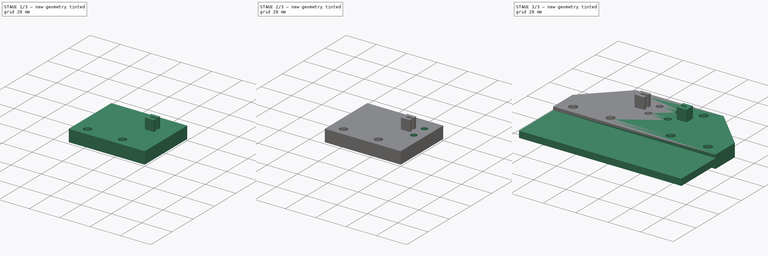
[diagram: build sequence overview — one tinted view per stage of 3, left to right]
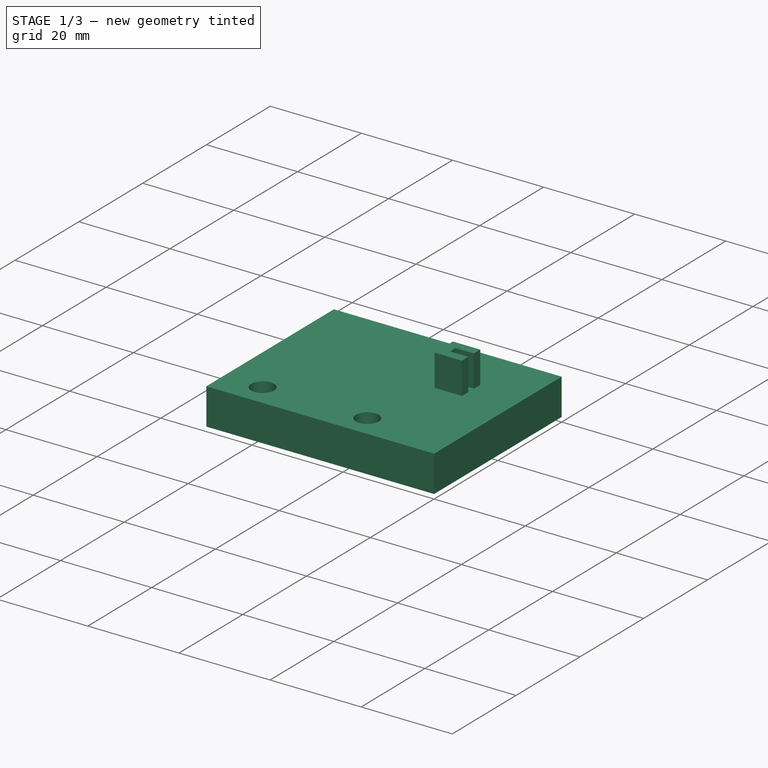
[diagram: stage 1 of 3 — iso view after this stage's code; geometry added in this stage tinted green]
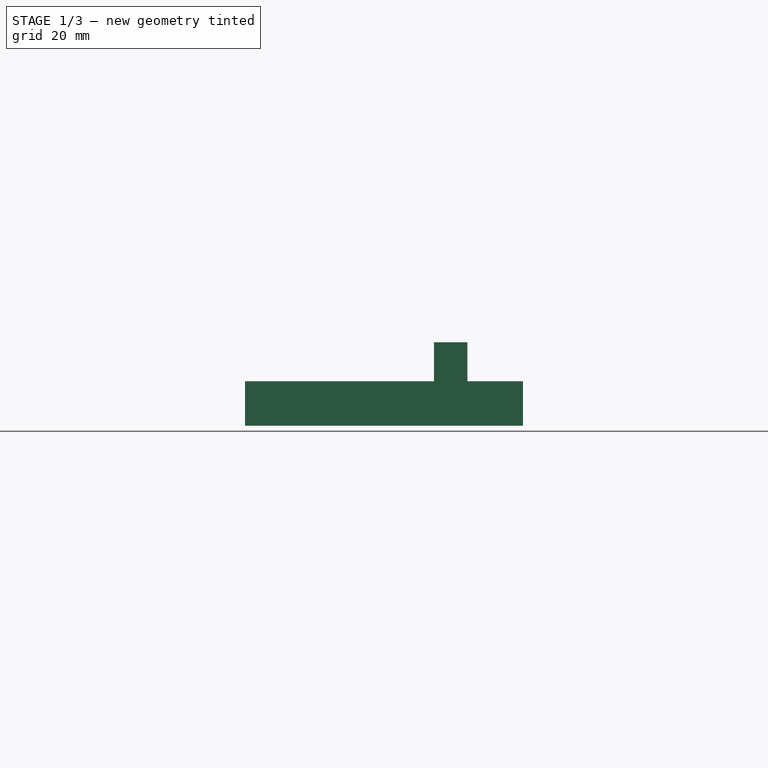
[diagram: stage 1 of 3 — front view after this stage's code; geometry added in this stage tinted green]
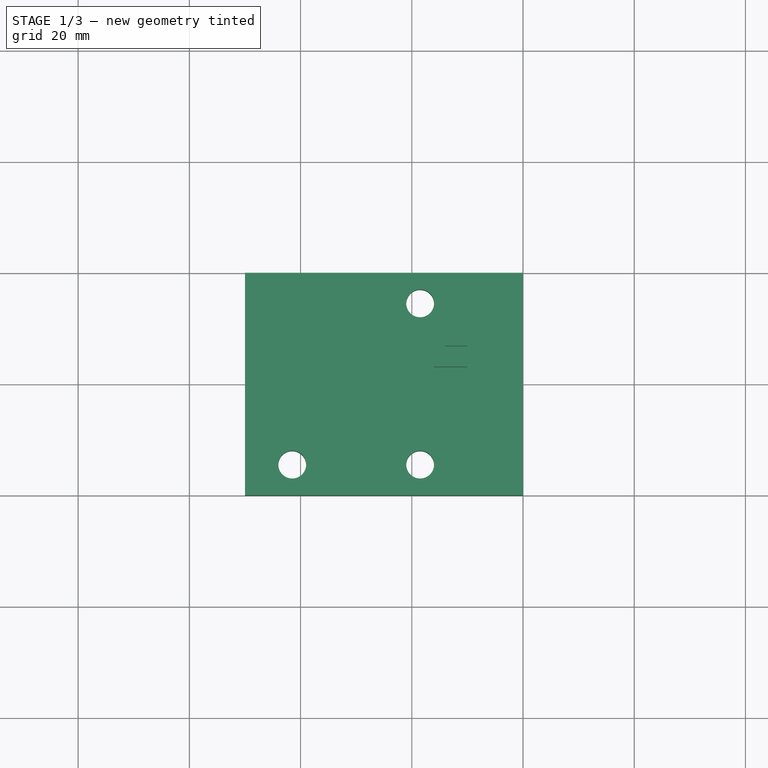
[diagram: stage 1 of 3 — top view after this stage's code; geometry added in this stage tinted green]
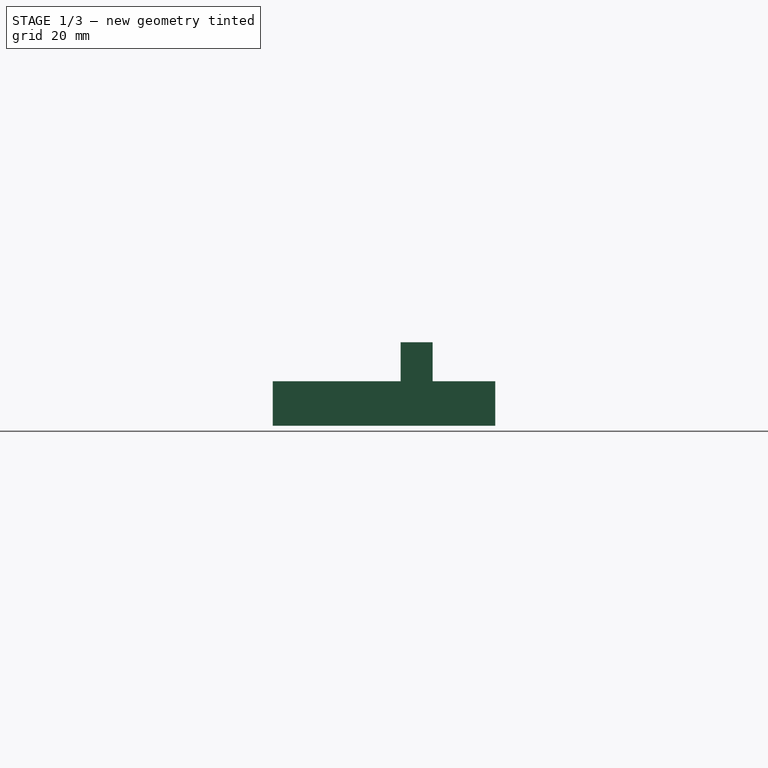
[diagram: stage 1 of 3 — right view after this stage's code; geometry added in this stage tinted green]
FCSTD DOCUMENT  (FreeCAD 1.0R39109 (Git))
Label: front_plate
License: All rights reserved
LicenseURL: https://en.wikipedia.org/wiki/All_rights_reserved
objects: Sketcher::SketchObject×5, PartDesign::Pad×3, PartDesign::Pocket×2, PartDesign::Mirrored×2, PartDesign::Chamfer×1, PartDesign::Body×1
note: 33 computed .brp shape members not serialized (recipe doc carries the construction recipe); baked Part::Feature solids carry a one-line shape summary decoded from their .brp

FEATURE [Sketcher::SketchObject] Sketch
  ArcFitTolerance = 1e-06
  AttachmentSupport = -> [XY_Plane]
  FullyConstrained = true
  MakeInternals = false
  MapMode = 5
  sketch-geometry (5):
    g0: LineSegment StartX=-50 StartY=-20 StartZ=0 EndX=0 EndY=-20 EndZ=0
    g1: LineSegment StartX=0 StartY=20 StartZ=0 EndX=-50 EndY=20 EndZ=0
    g2: LineSegment StartX=-50 StartY=20 StartZ=0 EndX=-50 EndY=-20 EndZ=0
    g3: GeomPoint [constr] X=0 Y=0 Z=0
    g4: LineSegment StartX=0 StartY=20 StartZ=0 EndX=0 EndY=-20 EndZ=0
  constraints (12):
    c: Coincident(g1,g2)
    c: Coincident(g2,g0)
    c: Horizontal(g0)
    c: Horizontal(g1)
    c: Vertical(g2)
    c: Distance(g0,g1) = 40
    c: Coincident(g3,g-1)
    c: Coincident(g4,g1)
    c: Coincident(g4,g0)
    c: DistanceX(g0,g0) = 50
    c: PointOnObject(g1,g-2)
    c: Symmetric(g1,g0,g-1)
FEATURE [PartDesign::Pad] Pad
  Direction = (0,0,1)
  Length = 8
  Length2 = 10
  Profile = -> Sketch
  ReferenceAxis = -> Sketch [N_Axis]
  Refine = true
  Suppressed = false
  Type = 0
FEATURE [Sketcher::SketchObject] Sketch001
  ArcFitTolerance = 1e-06
  AttachmentSupport = -> [Pad]
  FullyConstrained = true
  MakeInternals = false
  MapMode = 5
  Placement = pos=(0,0,8) rot=(0,0,1;0rad)
  sketch-geometry (8):
    g0: LineSegment [constr] StartX=-41.5 StartY=-14.5 StartZ=0 EndX=-18.5 EndY=-14.5 EndZ=0
    g1: LineSegment [constr] StartX=-18.5 StartY=-14.5 StartZ=0 EndX=-18.5 EndY=14.5 EndZ=0
    g2: LineSegment [constr] StartX=-18.5 StartY=14.5 StartZ=0 EndX=-41.5 EndY=14.5 EndZ=0
    g3: LineSegment [constr] StartX=-41.5 StartY=14.5 StartZ=0 EndX=-41.5 EndY=-14.5 EndZ=0
    g4: GeomPoint [constr] X=-30 Y=0 Z=0
    g5: Circle CenterX=-18.5 CenterY=14.5 CenterZ=0 NormalX=0 NormalY=0 NormalZ=1 AngleXU=0 Radius=2.5
    g6: Circle CenterX=-41.5 CenterY=-14.5 CenterZ=0 NormalX=0 NormalY=0 NormalZ=1 AngleXU=0 Radius=2.5
    g7: Circle CenterX=-18.5 CenterY=-14.5 CenterZ=0 NormalX=0 NormalY=0 NormalZ=1 AngleXU=0 Radius=2.5
  constraints (19):
    c: Coincident(g0,g1)
    c: Coincident(g1,g2)
    c: Coincident(g2,g3)
    c: Coincident(g3,g0)
    c: Horizontal(g0)
    c: Horizontal(g2)
    c: Vertical(g1)
    c: Vertical(g3)
    c: Symmetric(g2,g0,g4)
    c: Distance(g1,g3) = 23
    c: Distance(g0,g2) = 29
    c: PointOnObject(g4,g-1)
    c: DistanceX(g4,g-1) = 30
    c: Diameter(g5) = 5
    c: Coincident(g5,g1)
    c: Diameter(g6) = 5
    c: Coincident(g6,g0)
    c: Diameter(g7) = 5
    c: Coincident(g7,g0)
FEATURE [PartDesign::Pocket] Pocket
  BaseFeature = -> Pad
  Direction = (0,0,-1)
  Length = 5
  Length2 = 5
  Profile = -> Sketch001
  ReferenceAxis = -> Sketch001 [N_Axis]
  Refine = true
  Suppressed = false
  Type = 1
FEATURE [Sketcher::SketchObject] Sketch002
  ArcFitTolerance = 1e-06
  AttachmentSupport = -> [Pocket]
  FullyConstrained = true
  MakeInternals = false
  MapMode = 5
  Placement = pos=(0,0,8) rot=(0,0,1;0rad)
  sketch-geometry (8):
    g0: LineSegment StartX=-14 StartY=6.75 StartZ=0 EndX=-14 EndY=5 EndZ=0
    g1: LineSegment StartX=-14 StartY=6.75 StartZ=0 EndX=-10 EndY=6.75 EndZ=0
    g2: LineSegment StartX=-14 StartY=5 StartZ=0 EndX=-10 EndY=5 EndZ=0
    g3: LineSegment StartX=-10 StartY=6.75 StartZ=0 EndX=-10 EndY=8.75 EndZ=0
    g4: LineSegment StartX=-10 StartY=8.75 StartZ=0 EndX=-16 EndY=8.75 EndZ=0
    g5: LineSegment StartX=-16 StartY=8.75 StartZ=0 EndX=-16 EndY=3 EndZ=0
    g6: LineSegment StartX=-16 StartY=3 StartZ=0 EndX=-10 EndY=3 EndZ=0
    g7: LineSegment StartX=-10 StartY=3 StartZ=0 EndX=-10 EndY=5 EndZ=0
  constraints (24):
    c: Distance(g-1,g0) = 14
    c: DistanceY(g0,g0) = 1.75
    c: Distance(g1) = 4
    c: Coincident(g1,g0)
    c: Horizontal(g1)
    c: Distance(g2) = 4
    c: Coincident(g2,g0)
    c: Horizontal(g2)
    c: Distance(g3) = 2
    c: Coincident(g3,g1)
    c: Vertical(g3)
    c: Coincident(g4,g3)
    c: Horizontal(g4)
    c: Coincident(g5,g4)
    c: Vertical(g5)
    c: Coincident(g6,g5)
    c: Horizontal(g6)
    c: Coincident(g7,g6)
    c: Coincident(g7,g2)
    c: Vertical(g7)
    c: DistanceY(g7,g7) = 2
    c: Distance(g0,g5) = 2
    c: Vertical(g2,g1)
    c: Distance(g6,g-1) = 3
FEATURE [PartDesign::Pad] Pad001
  BaseFeature = -> Pocket
  Direction = (0,0,1)
  Length = 7
  Length2 = 10
  Profile = -> Sketch002
  ReferenceAxis = -> Sketch002 [N_Axis]
  Refine = true
  Suppressed = false
  Type = 0
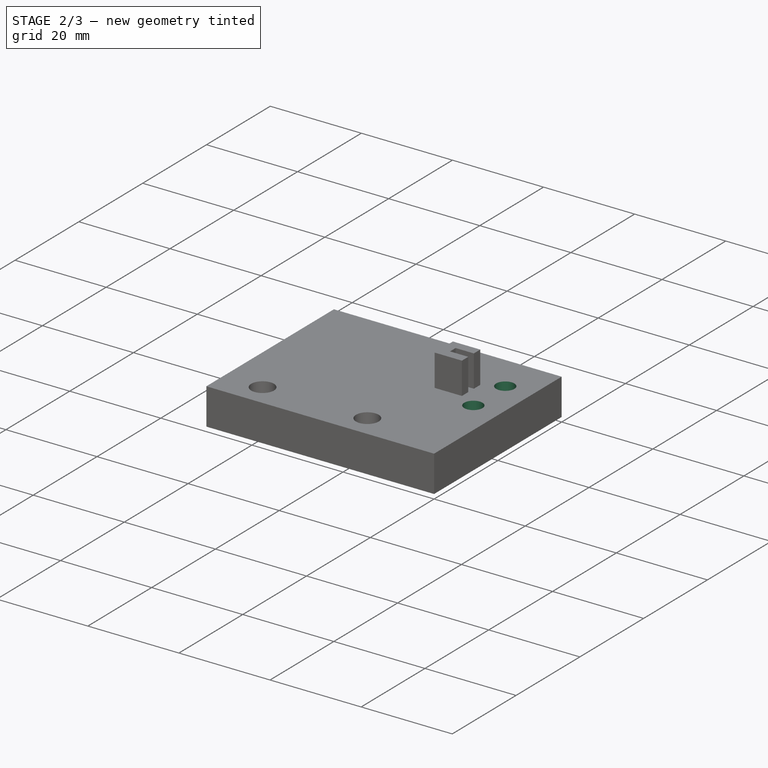
[diagram: stage 2 of 3 — iso view after this stage's code; geometry added in this stage tinted green]
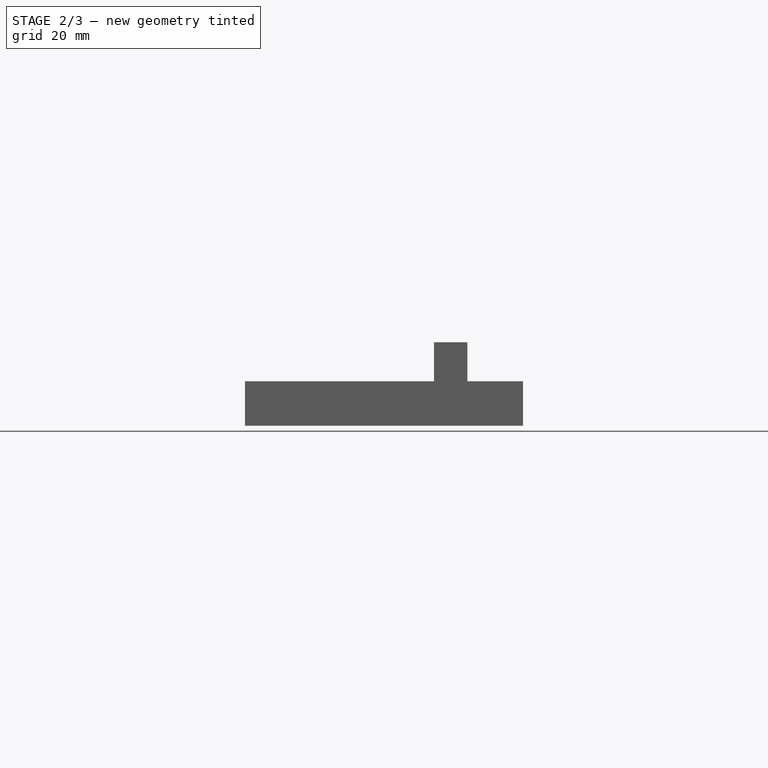
[diagram: stage 2 of 3 — front view after this stage's code; geometry added in this stage tinted green]
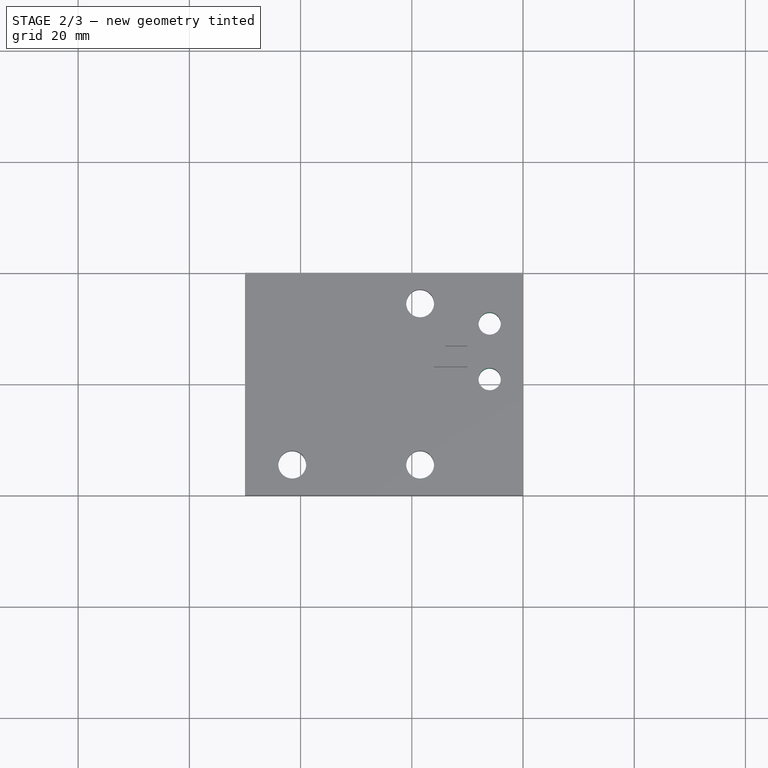
[diagram: stage 2 of 3 — top view after this stage's code; geometry added in this stage tinted green]
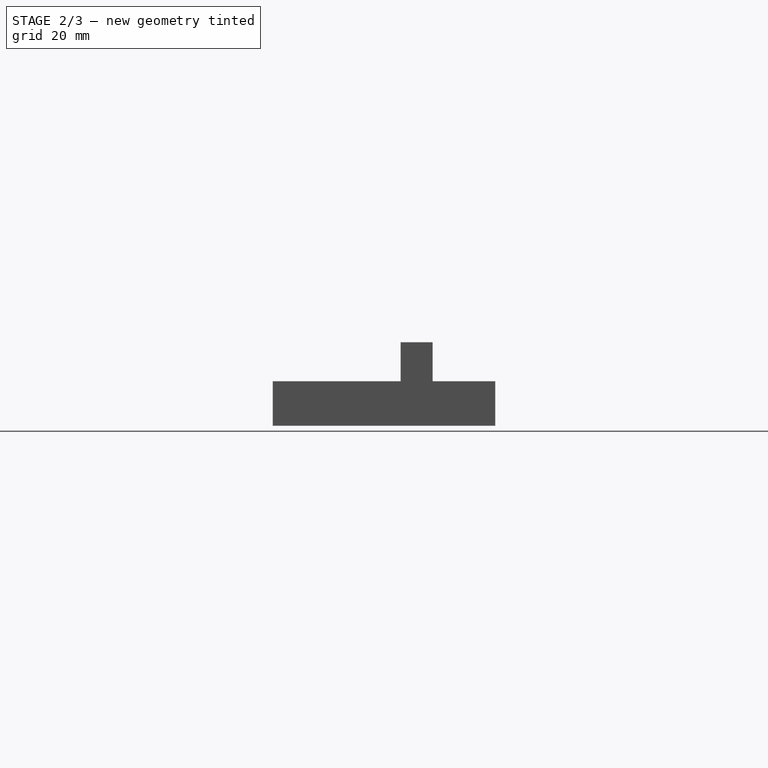
[diagram: stage 2 of 3 — right view after this stage's code; geometry added in this stage tinted green]
FEATURE [Sketcher::SketchObject] Sketch003
  ArcFitTolerance = 1e-06
  AttachmentSupport = -> [Pad001]
  ExternalGeometry = -> [Pad001]
  FullyConstrained = false
  MakeInternals = false
  MapMode = 5
  Placement = pos=(0,0,8) rot=(0,0,1;0rad)
  sketch-geometry (3):
    g0: Circle CenterX=-6 CenterY=0.875 CenterZ=0 NormalX=0 NormalY=0 NormalZ=1 AngleXU=0 Radius=2
    g1: Circle CenterX=-6 CenterY=10.875 CenterZ=0 NormalX=0 NormalY=0 NormalZ=1 AngleXU=0 Radius=2
    g2: LineSegment [constr] StartX=-14 StartY=5.875 StartZ=0 EndX=-4.87098 EndY=5.875 EndZ=0
  constraints (7):
    c: Diameter(g0) = 4
    c: Diameter(g1) = 4
    c: Vertical(g1,g0)
    c: DistanceY(g0,g1) = 10
    c: Symmetric(g-3,g-3,g2)
    c: Symmetric(g1,g0,g2)
    c: DistanceX(g2,g0) = 8
FEATURE [PartDesign::Pocket] Pocket001
  BaseFeature = -> Pad001
  Direction = (0,0,-1)
  Length = 5
  Length2 = 5
  Profile = -> Sketch003
  ReferenceAxis = -> Sketch003 [N_Axis]
  Refine = true
  Suppressed = false
  Type = 1
FEATURE [PartDesign::Mirrored] Mirrored
  BaseFeature = -> Pocket001
  MirrorPlane = -> XY_Plane
  Originals = -> [Pocket001,Pad001]
  Refine = true
  Suppressed = false
  TransformMode = 0
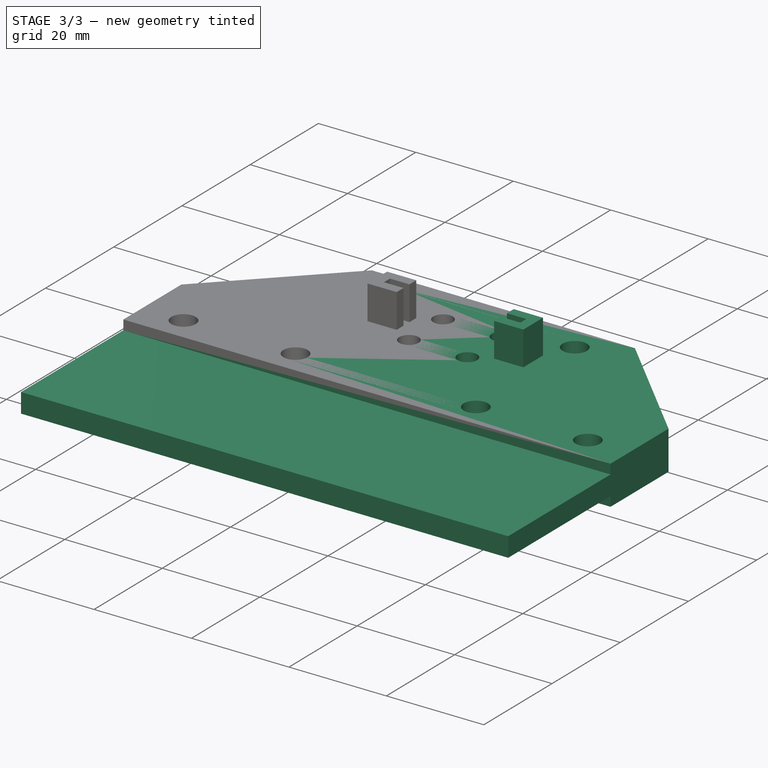
[diagram: stage 3 of 3 — iso view after this stage's code; geometry added in this stage tinted green]
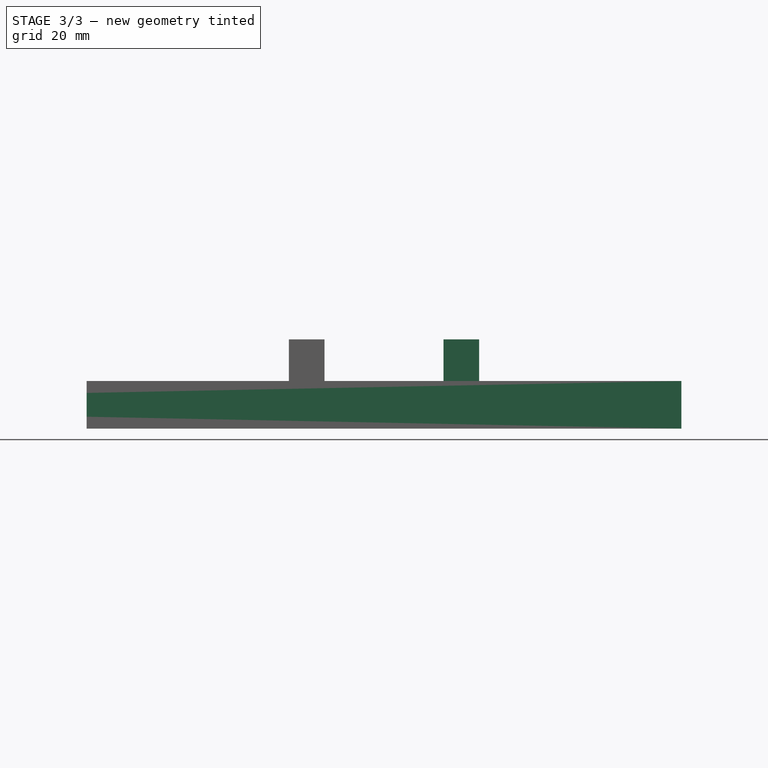
[diagram: stage 3 of 3 — front view after this stage's code; geometry added in this stage tinted green]
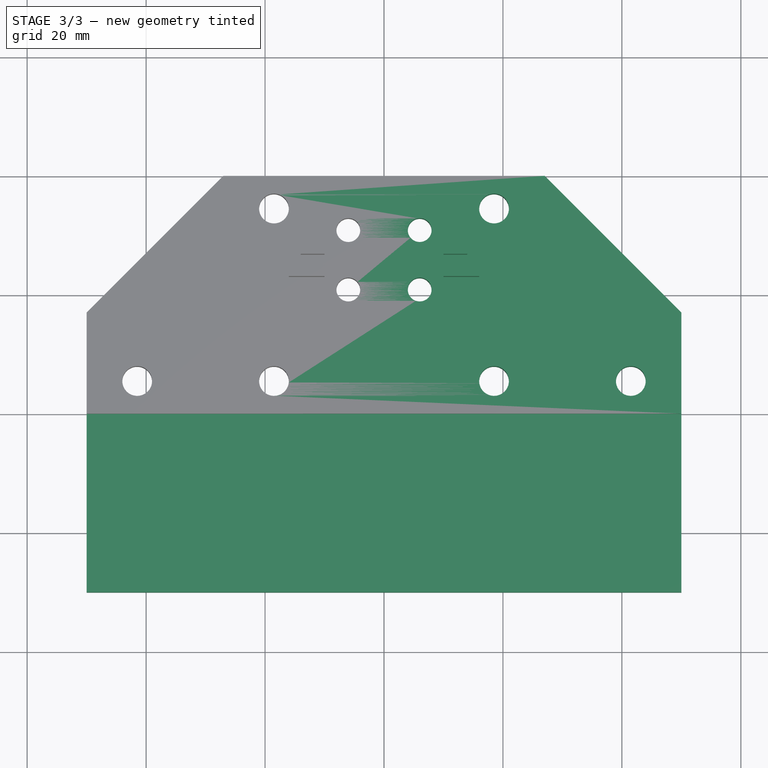
[diagram: stage 3 of 3 — top view after this stage's code; geometry added in this stage tinted green]
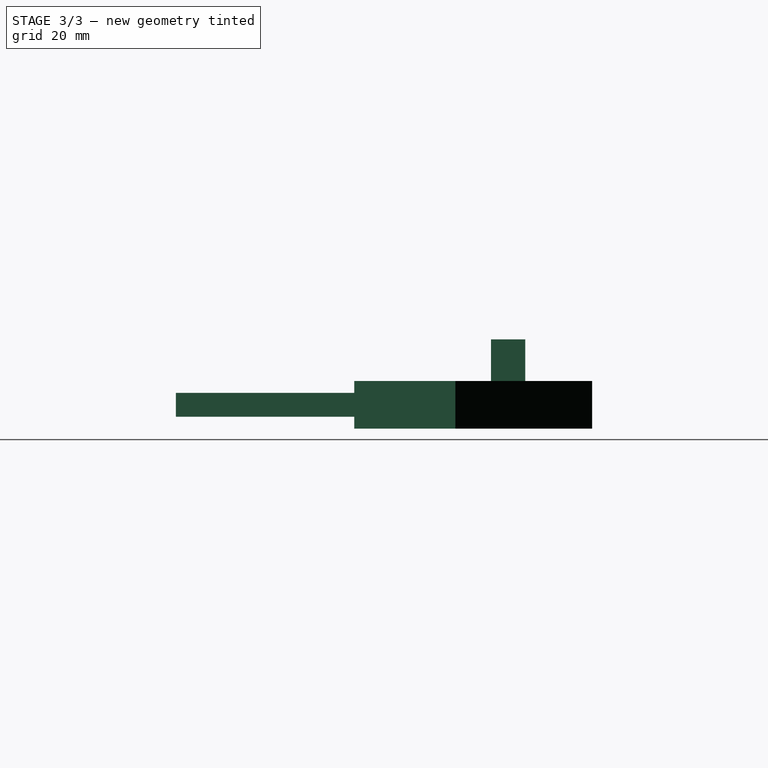
[diagram: stage 3 of 3 — right view after this stage's code; geometry added in this stage tinted green]
FEATURE [PartDesign::Mirrored] Mirrored001
  BaseFeature = -> Mirrored
  MirrorPlane = -> YZ_Plane
  Refine = true
  Suppressed = false
  TransformMode = 1
FEATURE [PartDesign::Chamfer] Chamfer
  Angle = 45
  Base = -> Mirrored001 [Edge1,Edge6]
  BaseFeature = -> Mirrored001
  ChamferType = 0
  FlipDirection = false
  Refine = true
  Size = 23
  Size2 = 1
  SupportTransform = false
  Suppressed = false
  UseAllEdges = false
FEATURE [Sketcher::SketchObject] Sketch004
  ArcFitTolerance = 1e-06
  AttachmentSupport = -> [Chamfer]
  ExternalGeometry = -> [Chamfer]
  FullyConstrained = true
  MakeInternals = false
  MapMode = 5
  Placement = pos=(0,-20,0) rot=(1,0,0;1.5708rad)
  sketch-geometry (4):
    g0: LineSegment StartX=-50 StartY=6 StartZ=0 EndX=-50 EndY=2 EndZ=0
    g1: LineSegment StartX=-50 StartY=2 StartZ=0 EndX=50 EndY=2 EndZ=0
    g2: LineSegment StartX=50 StartY=2 StartZ=0 EndX=50 EndY=6 EndZ=0
    g3: LineSegment StartX=50 StartY=6 StartZ=0 EndX=-50 EndY=6 EndZ=0
  constraints (12):
    c: Coincident(g0,g1)
    c: Coincident(g1,g2)
    c: Coincident(g2,g3)
    c: Coincident(g3,g0)
    c: Vertical(g0)
    c: Vertical(g2)
    c: Horizontal(g1)
    c: Horizontal(g3)
    c: PointOnObject(g0,g-4)
    c: PointOnObject(g1,g-3)
    c: Distance(g3,g1) = 4
    c: DistanceY(g0,g-4) = 2
FEATURE [PartDesign::Pad] Pad002
  BaseFeature = -> Chamfer
  Direction = (0,-1,2e-16)
  Length = 30
  Length2 = 10
  Profile = -> Sketch004
  ReferenceAxis = -> Sketch004 [N_Axis]
  Refine = true
  Suppressed = false
  Type = 0
FEATURE [PartDesign::Body] Body
  AllowCompound = false
  Group = -> [Sketch,Pad,Sketch001,Pocket,Sketch002,Pad001,Sketch003,Pocket001,Mirrored,Mirrored001,Chamfer,Sketch004,Pad002]
  Origin = -> Origin
  Tip = -> Pad002
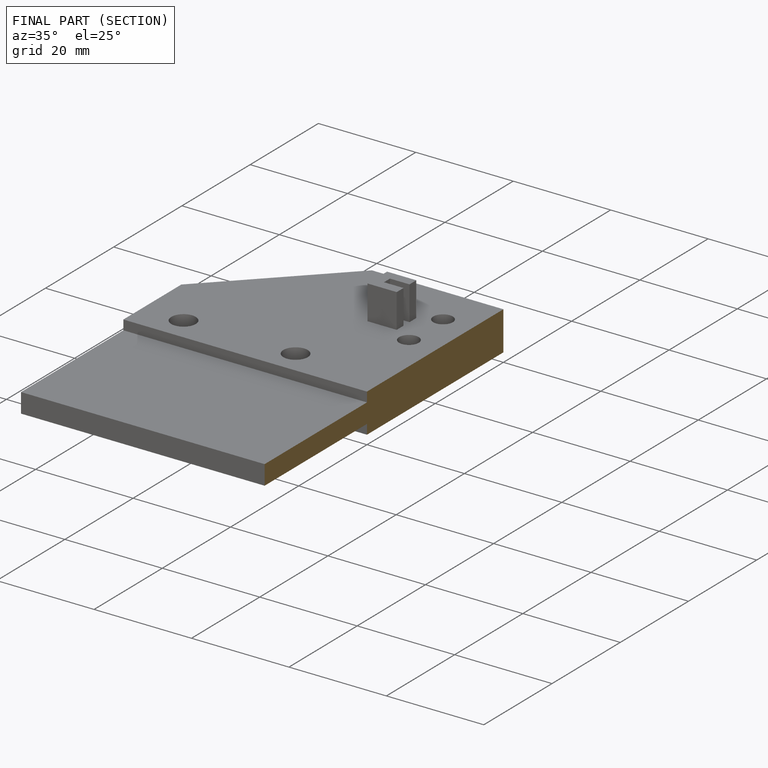
[diagram: finished part — half-section view (interior)]
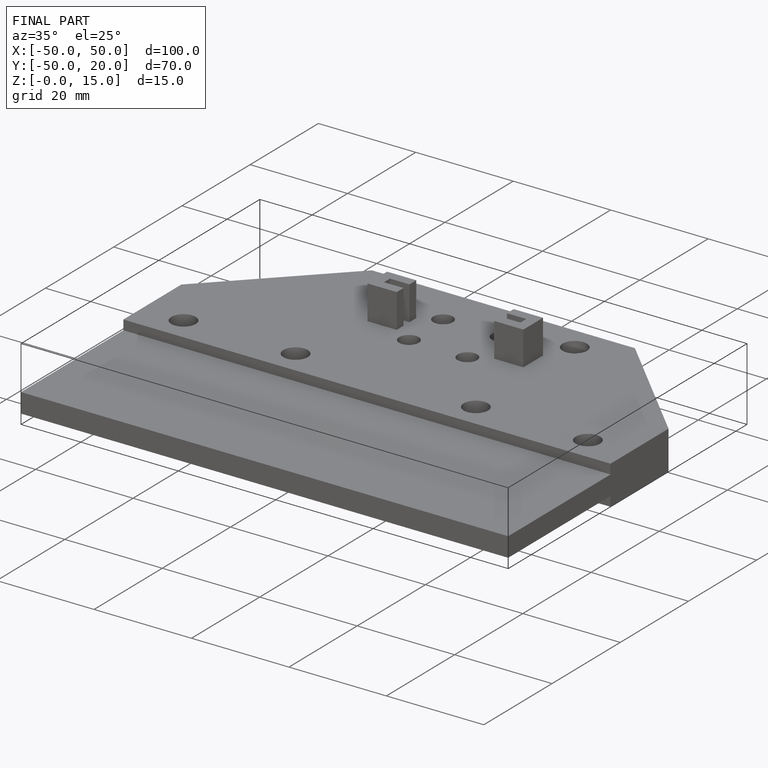
[diagram: finished part — iso view with bounding-box wireframe]
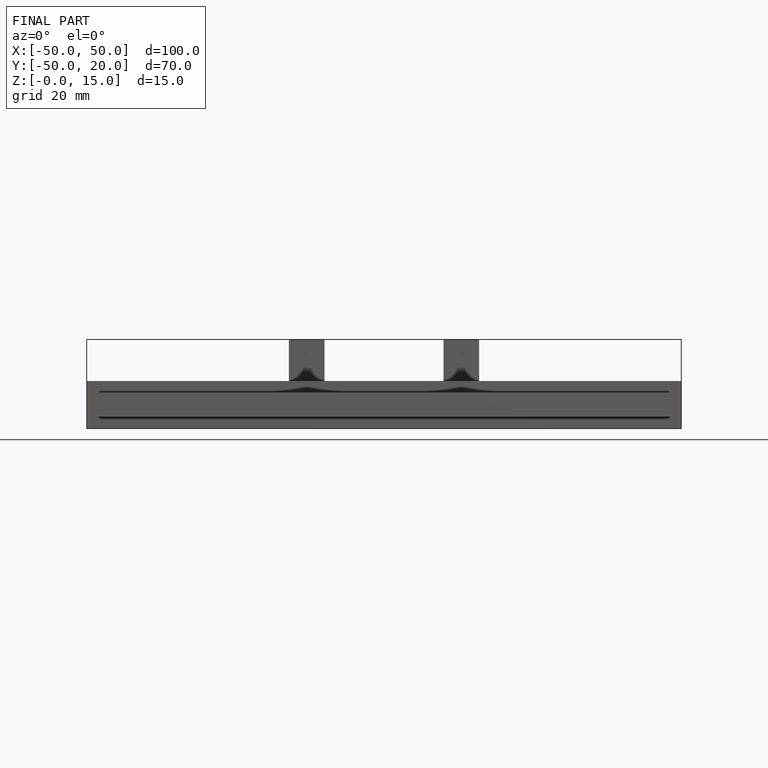
[diagram: finished part — front view with bounding-box wireframe]
